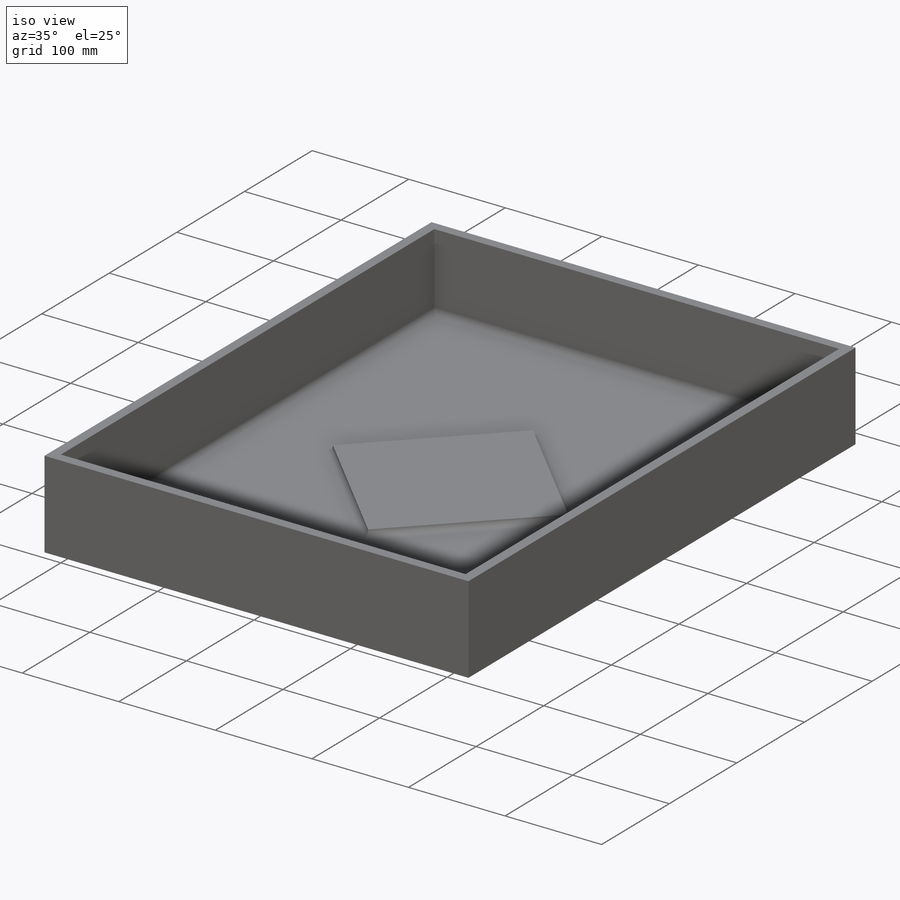
[diagram: iso view]
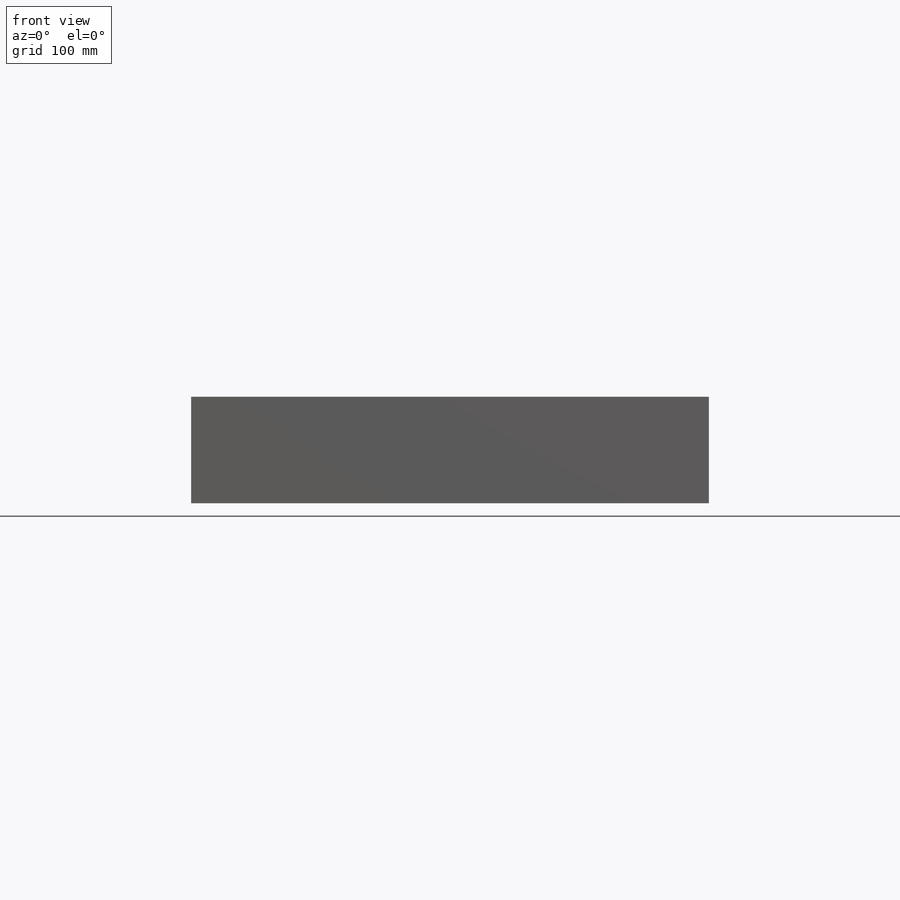
[diagram: front view]
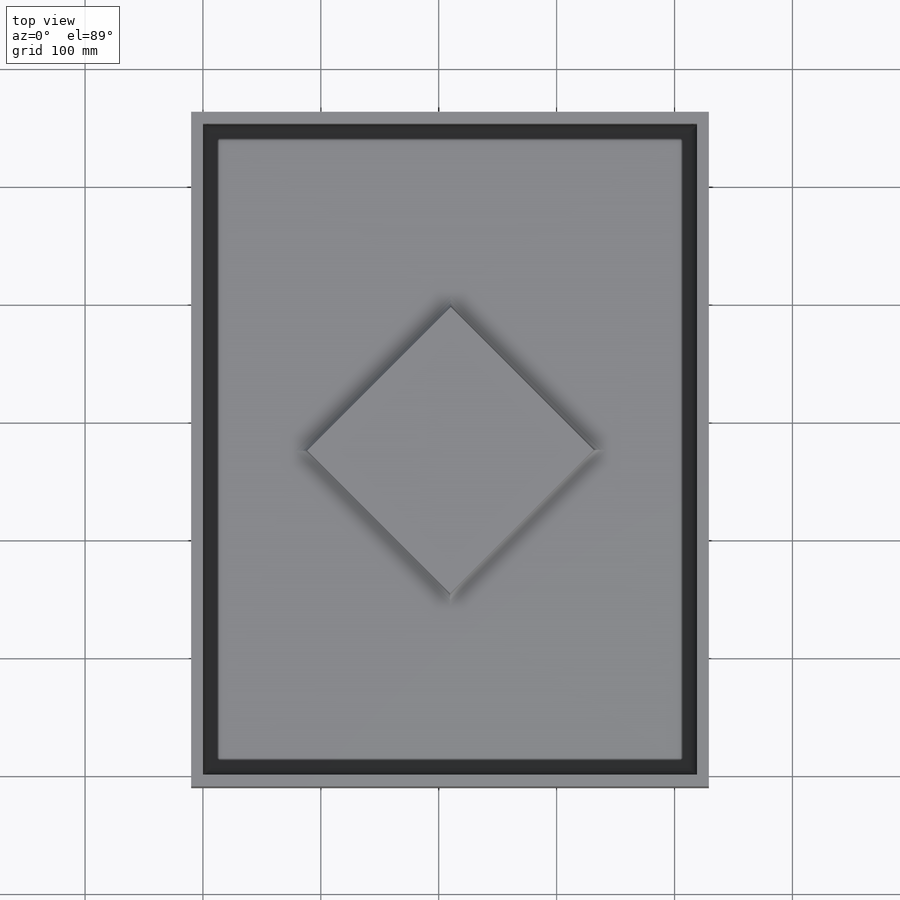
[diagram: top view]
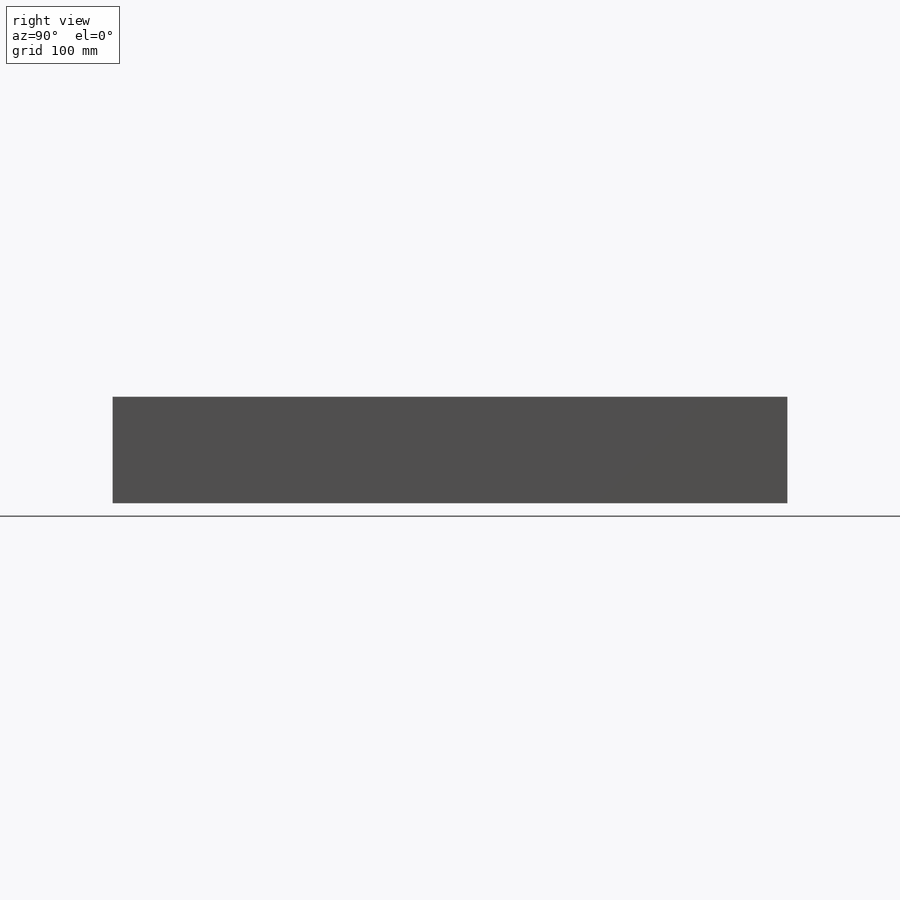
[diagram: right view]
SOLIDWORKS PART (.sldprt)
format: sldprt  version: not decoded by parser v0  size: 199,680 bytes
history: native  units: mm
features: sketch x4, extrude x3, material x1, fillet x1 (+11 scaffold rows collapsed)
feature tree (20):
  scaffold x11  (default folders/planes/origin — collapsed)
  material  "Material <not specified>"
  sketch  "Sketch1"  dims[D1=171.45mm]
  sketch  "Sketch2"
  extrude  "Boss-Extrude1"  Depth=80.42mm
  sketch  "Sketch3"
  extrude  "Boss-Extrude2"  Depth=7.16mm
  sketch  "Sketch4"
  extrude  "Boss-Extrude3"  Depth=10mm
  fillet  "Fillet1"  Radius=7mm
decode coverage: 5 of 8 modeling features carry decoded parameters
note: suppression state not decoded; provenance and decode notes live in map.json
